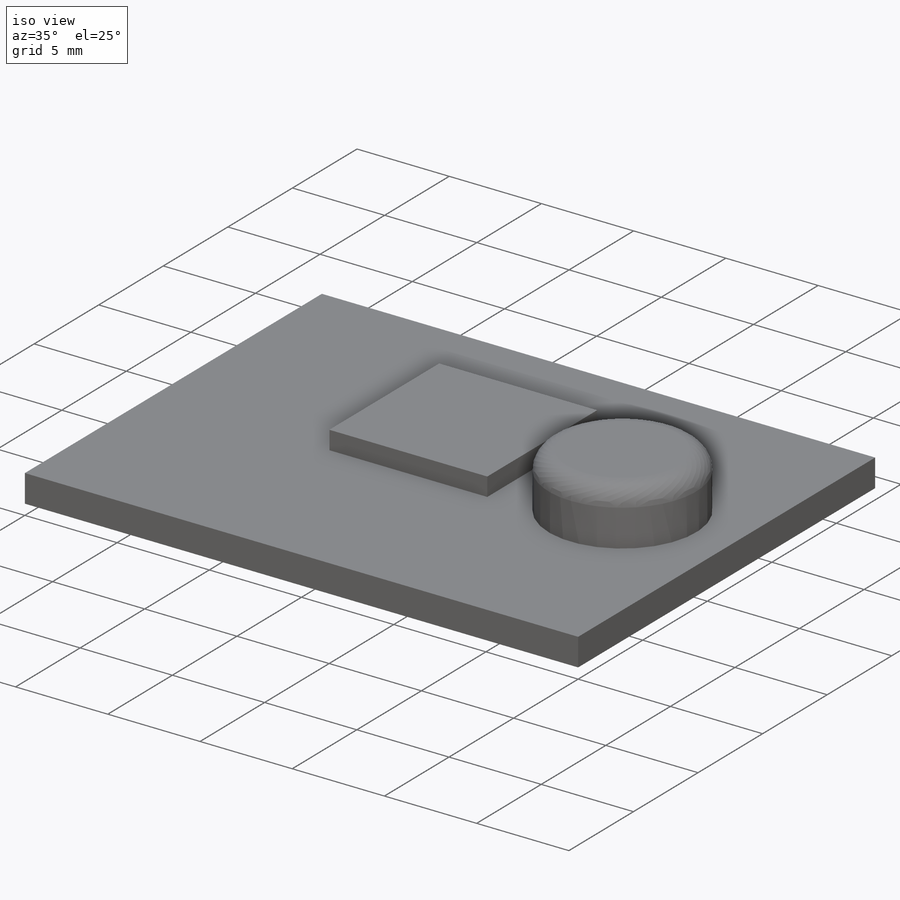
[diagram: iso view]
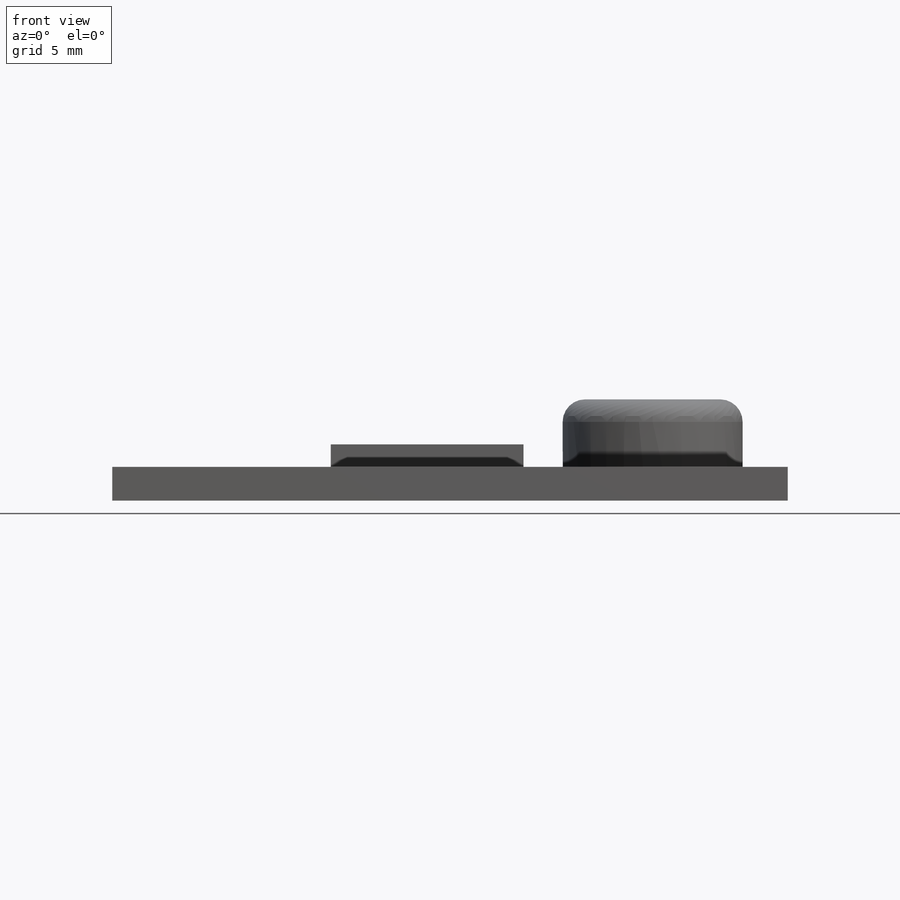
[diagram: front view]
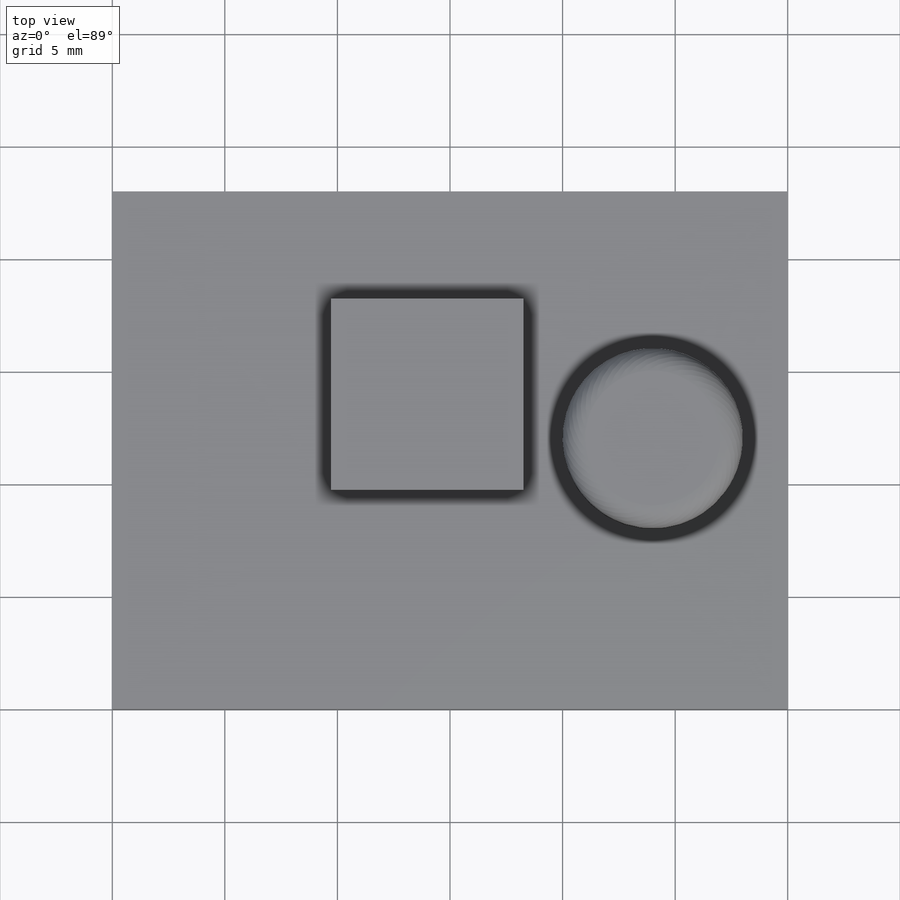
[diagram: top view]
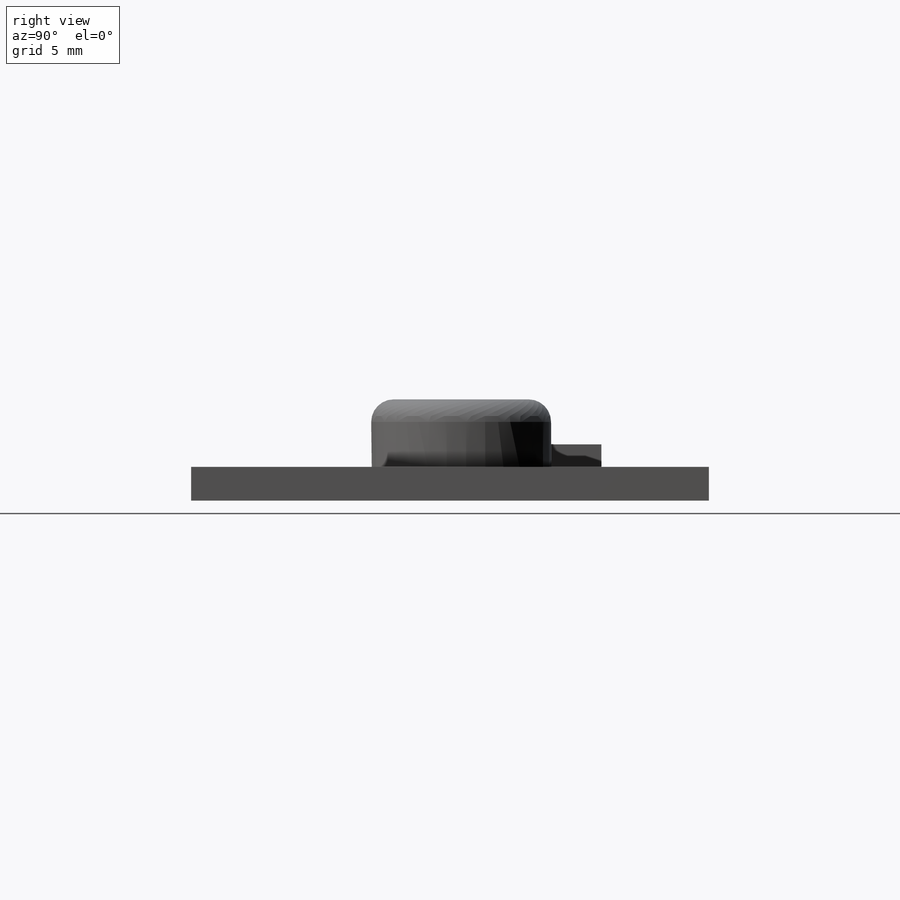
[diagram: right view]
SOLIDWORKS PART (.sldprt)
format: sldprt  version: not decoded by parser v0  size: 173,568 bytes
history: native  units: mm
features: plane x3, sketch x3, extrude x3, material x1, fillet x1 (+9 scaffold rows collapsed)
feature tree (20):
  scaffold x9  (default folders/planes/origin — collapsed)
  material  "Material <não especificado>"
  plane  "Plano frontal"
  plane  "Plano superior"
  plane  "Plano direito"
  sketch  "Esboço1"  dims[D1=30.0mm D2=23.0mm]
  extrude  "Ressalto-extrusão1"  Depth=1.5mm
  sketch  "Esboço2"
  extrude  "Ressalto-extrusão2"  Depth=1mm
  sketch  "Esboço3"  dims[D2=8.0mm D1=6.0mm D3=11.0mm]
  extrude  "Ressalto-extrusão3"  Depth=3mm
  fillet  "Filete1"  Radius=1mm
decode coverage: 6 of 7 modeling features carry decoded parameters
note: suppression state not decoded; provenance and decode notes live in map.json
